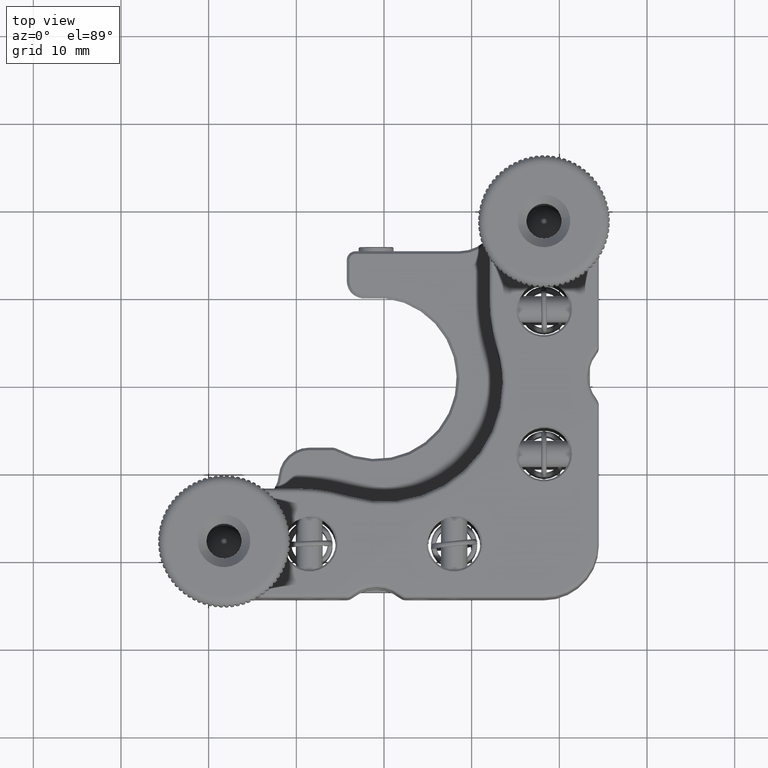
[diagram: clean part render]
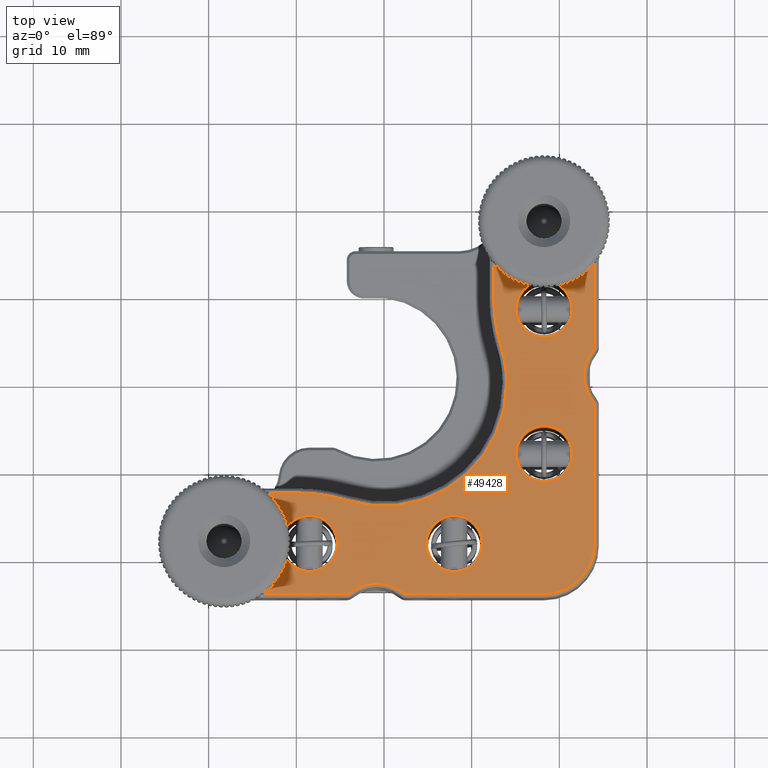
[diagram: same view with one face highlighted and labeled with its STEP entity id]
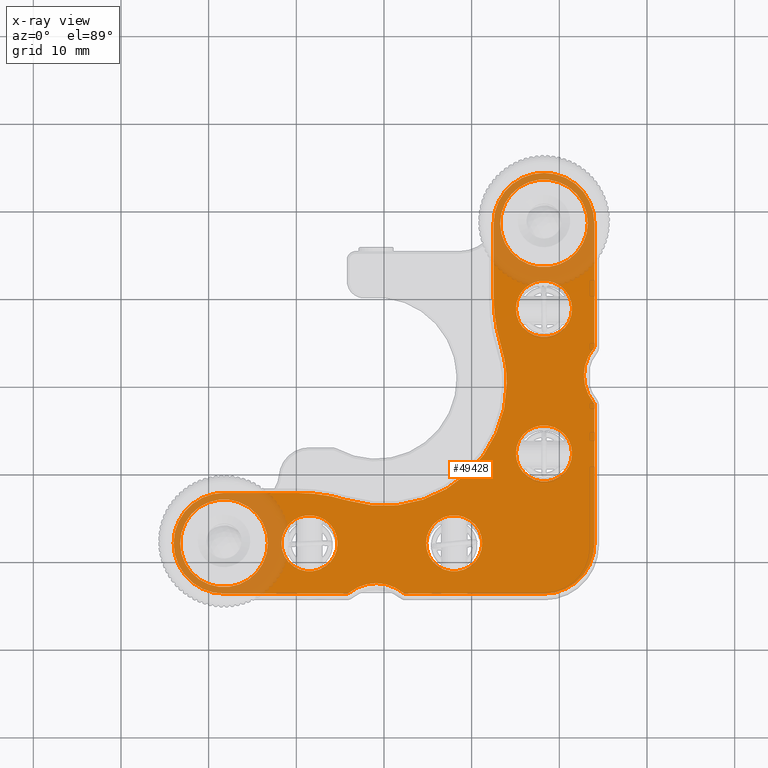
[diagram: x-ray of the same camera — body ghosted, the highlighted face saturated]
A machine part, top view. The second image highlights one B-rep face of the part: STEP entity #49428.
The next image is the same camera in x-ray: the body ghosted, the highlighted face saturated — about 15% of this face is hidden behind the body in this view.
In plain terms, the highlighted planar face has unit normal (-0, 0, 1).
Its self-contained STEP definition (entity closure, byte-faithful):
#198 = EDGE_CURVE ( 'NONE', #52877, #49282, #49511, .T. ) ;
#214 = EDGE_CURVE ( 'NONE', #3505, #34670, #11212, .T. ) ;
#220 = CIRCLE ( 'NONE', #31741, 14.00000000000000000 ) ;
#386 = DIRECTION ( 'NONE',  ( -0.000000000000000000, 0.000000000000000000, 1.000000000000000000 ) ) ;
#769 = DIRECTION ( 'NONE',  ( 1.000000000000000000, 0.000000000000000000, 0.000000000000000000 ) ) ;
#1269 = AXIS2_PLACEMENT_3D ( 'NONE', #2354, #6837, #51552 ) ;
#1720 = CARTESIAN_POINT ( 'NONE',  ( -0.8999999999999939160, -27.65000000000000213, 7.500000000000000000 ) ) ;
#1869 = ORIENTED_EDGE ( 'NONE', *, *, #22063, .T. ) ;
#2047 = CARTESIAN_POINT ( 'NONE',  ( -18.24999999999999645, -18.24999999999999645, 7.500000000000000000 ) ) ;
#2306 = EDGE_LOOP ( 'NONE', ( #25286, #57844 ) ) ;
#2354 = CARTESIAN_POINT ( 'NONE',  ( -4.276388603226821239, -23.49999999999999645, 7.500000000000000000 ) ) ;
#2527 = EDGE_CURVE ( 'NONE', #18550, #16375, #220, .T. ) ;
#3274 = VERTEX_POINT ( 'NONE', #17874 ) ;
#3361 = CARTESIAN_POINT ( 'NONE',  ( -18.24999999999999645, -18.24999999999999645, 7.500000000000000000 ) ) ;
#3505 = VERTEX_POINT ( 'NONE', #4822 ) ;
#3631 = DIRECTION ( 'NONE',  ( 0.000000000000000000, -0.000000000000000000, -1.000000000000000000 ) ) ;
#3664 = DIRECTION ( 'NONE',  ( 0.000000000000000000, -0.000000000000000000, -1.000000000000000000 ) ) ;
#3686 = ORIENTED_EDGE ( 'NONE', *, *, #2527, .T. ) ;
#3861 = CARTESIAN_POINT ( 'NONE',  ( -8.499999999999992895, -18.25000000000001776, 7.500000000000000000 ) ) ;
#3927 = AXIS2_PLACEMENT_3D ( 'NONE', #31081, #22382, #4483 ) ;
#4483 = DIRECTION ( 'NONE',  ( 1.000000000000000000, 0.000000000000000000, 0.000000000000000000 ) ) ;
#4543 = VERTEX_POINT ( 'NONE', #8823 ) ;
#4618 = AXIS2_PLACEMENT_3D ( 'NONE', #18024, #26094, #36259 ) ;
#4648 = EDGE_CURVE ( 'NONE', #43157, #18753, #40830, .T. ) ;
#4652 = EDGE_CURVE ( 'NONE', #43255, #12677, #54212, .T. ) ;
#4675 = EDGE_CURVE ( 'NONE', #30658, #3274, #43745, .T. ) ;
#4676 = CARTESIAN_POINT ( 'NONE',  ( 18.25000000000001066, 8.500000000000000000, 7.500000000000000000 ) ) ;
#4822 = CARTESIAN_POINT ( 'NONE',  ( 15.05000000000000782, -8.000000000000000000, 7.500000000000000000 ) ) ;
#4872 = VERTEX_POINT ( 'NONE', #54084 ) ;
#5053 = CARTESIAN_POINT ( 'NONE',  ( 4.800000000000015810, -18.25000000000001066, 7.500000000000000000 ) ) ;
#6504 = DIRECTION ( 'NONE',  ( 1.000000000000000000, -1.430699774001489446E-15, 0.000000000000000000 ) ) ;
#6575 = EDGE_LOOP ( 'NONE', ( #10753, #53641 ) ) ;
#6837 = DIRECTION ( 'NONE',  ( -0.000000000000000000, 0.000000000000000000, 1.000000000000000000 ) ) ;
#6895 = EDGE_CURVE ( 'NONE', #29401, #38690, #27680, .T. ) ;
#6908 = AXIS2_PLACEMENT_3D ( 'NONE', #51005, #32313, #10170 ) ;
#7308 = CARTESIAN_POINT ( 'NONE',  ( 15.05000000000002203, 8.500000000000000000, 7.500000000000000000 ) ) ;
#7483 = CARTESIAN_POINT ( 'NONE',  ( 18.25000000000001066, -8.000000000000000000, 7.500000000000000000 ) ) ;
#7828 = EDGE_CURVE ( 'NONE', #42696, #29255, #32695, .T. ) ;
#7888 = DIRECTION ( 'NONE',  ( -0.000000000000000000, 0.000000000000000000, 1.000000000000000000 ) ) ;
#7899 = VERTEX_POINT ( 'NONE', #38500 ) ;
#7966 = ORIENTED_EDGE ( 'NONE', *, *, #25686, .T. ) ;
#8235 = VERTEX_POINT ( 'NONE', #24997 ) ;
#8258 = EDGE_CURVE ( 'NONE', #4872, #54550, #45082, .T. ) ;
#8823 = CARTESIAN_POINT ( 'NONE',  ( -3.960838266476649938, -23.88785046728971651, 7.500000000000000000 ) ) ;
#8832 = DIRECTION ( 'NONE',  ( 0.000000000000000000, -0.000000000000000000, -1.000000000000000000 ) ) ;
#8866 = AXIS2_PLACEMENT_3D ( 'NONE', #2047, #38469, #56621 ) ;
#9078 = DIRECTION ( 'NONE',  ( 0.000000000000000000, -0.000000000000000000, -1.000000000000000000 ) ) ;
#9160 = CIRCLE ( 'NONE', #18702, 0.5000000000000004441 ) ;
#9327 = EDGE_CURVE ( 'NONE', #8235, #4543, #14579, .T. ) ;
#9487 = DIRECTION ( 'NONE',  ( 0.000000000000000000, -0.000000000000000000, -1.000000000000000000 ) ) ;
#9763 = CARTESIAN_POINT ( 'NONE',  ( 23.88785046728972006, 3.960838266476649494, 7.500000000000000000 ) ) ;
#10010 = CARTESIAN_POINT ( 'NONE',  ( -8.499999999999992895, -18.25000000000001776, 7.500000000000000000 ) ) ;
#10170 = DIRECTION ( 'NONE',  ( 1.000000000000000000, 0.000000000000000000, 0.000000000000000000 ) ) ;
#10262 = ORIENTED_EDGE ( 'NONE', *, *, #198, .T. ) ;
#10304 = DIRECTION ( 'NONE',  ( -0.000000000000000000, 0.000000000000000000, 1.000000000000000000 ) ) ;
#10614 = VECTOR ( 'NONE', #21391, 1000.000000000000000 ) ;
#10753 = ORIENTED_EDGE ( 'NONE', *, *, #52618, .T. ) ;
#10800 = VERTEX_POINT ( 'NONE', #42916 ) ;
#10890 = DIRECTION ( 'NONE',  ( 0.000000000000000000, -0.000000000000000000, -1.000000000000000000 ) ) ;
#10989 = CARTESIAN_POINT ( 'NONE',  ( -5.299999999999991829, -18.25000000000001776, 7.500000000000000000 ) ) ;
#11125 = AXIS2_PLACEMENT_3D ( 'NONE', #32394, #386, #54972 ) ;
#11212 = CIRCLE ( 'NONE', #42621, 3.200000000000001510 ) ;
#11360 = DIRECTION ( 'NONE',  ( -0.000000000000000000, 0.000000000000000000, 1.000000000000000000 ) ) ;
#11495 = DIRECTION ( 'NONE',  ( 1.000000000000000000, 0.000000000000000000, 0.000000000000000000 ) ) ;
#11561 = CARTESIAN_POINT ( 'NONE',  ( 12.50000000000000533, 9.912113800799499330, 7.500000000000000000 ) ) ;
#11699 = AXIS2_PLACEMENT_3D ( 'NONE', #36656, #9487, #35792 ) ;
#12082 = EDGE_CURVE ( 'NONE', #38690, #29401, #15790, .T. ) ;
#12226 = CIRCLE ( 'NONE', #4618, 4.999999999999997335 ) ;
#12677 = VERTEX_POINT ( 'NONE', #41664 ) ;
#12855 = FACE_BOUND ( 'NONE', #42000, .T. ) ;
#12903 = EDGE_CURVE ( 'NONE', #53871, #42795, #53967, .T. ) ;
#13037 = CIRCLE ( 'NONE', #14935, 3.200000000000001510 ) ;
#13604 = ORIENTED_EDGE ( 'NONE', *, *, #16591, .T. ) ;
#13867 = ORIENTED_EDGE ( 'NONE', *, *, #4648, .T. ) ;
#13950 = CIRCLE ( 'NONE', #11125, 19.50000000000000355 ) ;
#14155 = VERTEX_POINT ( 'NONE', #42251 ) ;
#14579 = CIRCLE ( 'NONE', #1269, 0.5000000000000000000 ) ;
#14864 = EDGE_CURVE ( 'NONE', #50418, #47643, #47553, .T. ) ;
#14935 = AXIS2_PLACEMENT_3D ( 'NONE', #3861, #21156, #22052 ) ;
#15019 = EDGE_CURVE ( 'NONE', #12677, #50114, #40512, .T. ) ;
#15349 = DIRECTION ( 'NONE',  ( 1.000000000000000000, 0.000000000000000000, 0.000000000000000000 ) ) ;
#15555 = AXIS2_PLACEMENT_3D ( 'NONE', #3361, #3664, #25725 ) ;
#15732 = VERTEX_POINT ( 'NONE', #41544 ) ;
#15790 = CIRCLE ( 'NONE', #28262, 3.199999999999987743 ) ;
#15885 = EDGE_CURVE ( 'NONE', #49282, #20891, #9160, .T. ) ;
#16375 = VERTEX_POINT ( 'NONE', #26919 ) ;
#16591 = EDGE_CURVE ( 'NONE', #18753, #43157, #13037, .T. ) ;
#16972 = EDGE_CURVE ( 'NONE', #42795, #53871, #25460, .T. ) ;
#17040 = DIRECTION ( 'NONE',  ( 1.000000000000000000, 0.000000000000000000, 0.000000000000000000 ) ) ;
#17289 = DIRECTION ( 'NONE',  ( 1.000000000000000000, 0.000000000000000000, 0.000000000000000000 ) ) ;
#17669 = CARTESIAN_POINT ( 'NONE',  ( 14.00000000000000000, 0.000000000000000000, 7.500000000000000000 ) ) ;
#17874 = CARTESIAN_POINT ( 'NONE',  ( -18.24999999999999645, -23.99999999999999645, 7.500000000000000000 ) ) ;
#18024 = CARTESIAN_POINT ( 'NONE',  ( 18.25000000000000711, 18.25000000000000355, 7.500000000000000000 ) ) ;
#18550 = VERTEX_POINT ( 'NONE', #17669 ) ;
#18702 = AXIS2_PLACEMENT_3D ( 'NONE', #48729, #58554, #26688 ) ;
#18753 = VERTEX_POINT ( 'NONE', #10989 ) ;
#18910 = AXIS2_PLACEMENT_3D ( 'NONE', #44750, #48608, #49196 ) ;
#19825 = AXIS2_PLACEMENT_3D ( 'NONE', #58476, #22994, #41194 ) ;
#19906 = DIRECTION ( 'NONE',  ( 0.000000000000000000, -0.000000000000000000, -1.000000000000000000 ) ) ;
#19966 = ORIENTED_EDGE ( 'NONE', *, *, #15019, .T. ) ;
#20019 = VECTOR ( 'NONE', #45326, 1000.000000000000000 ) ;
#20253 = VERTEX_POINT ( 'NONE', #30433 ) ;
#20262 = CARTESIAN_POINT ( 'NONE',  ( 18.25000000000000355, -18.24999999999999289, 7.500000000000000000 ) ) ;
#20424 = CARTESIAN_POINT ( 'NONE',  ( -18.24999999999999645, -18.25000000000000355, 7.500000000000000000 ) ) ;
#20891 = VERTEX_POINT ( 'NONE', #30859 ) ;
#21110 = CARTESIAN_POINT ( 'NONE',  ( -23.24999999999999289, -18.24999999999999645, 7.500000000000000000 ) ) ;
#21156 = DIRECTION ( 'NONE',  ( 0.000000000000000000, -0.000000000000000000, -1.000000000000000000 ) ) ;
#21391 = DIRECTION ( 'NONE',  ( 3.788569206083147235E-16, -1.000000000000000000, 0.000000000000000000 ) ) ;
#21632 = ORIENTED_EDGE ( 'NONE', *, *, #12082, .T. ) ;
#22052 = DIRECTION ( 'NONE',  ( 1.000000000000000000, 0.000000000000000000, 0.000000000000000000 ) ) ;
#22063 = EDGE_CURVE ( 'NONE', #20891, #43255, #50520, .T. ) ;
#22356 = EDGE_CURVE ( 'NONE', #50114, #7899, #43879, .T. ) ;
#22382 = DIRECTION ( 'NONE',  ( -0.000000000000000000, 0.000000000000000000, 1.000000000000000000 ) ) ;
#22871 = DIRECTION ( 'NONE',  ( 1.000000000000000000, 0.000000000000000000, 0.000000000000000000 ) ) ;
#22994 = DIRECTION ( 'NONE',  ( -0.000000000000000000, 0.000000000000000000, 1.000000000000000000 ) ) ;
#23028 = CARTESIAN_POINT ( 'NONE',  ( -23.99999999999999645, -18.24999999999999289, 7.500000000000000000 ) ) ;
#23300 = ORIENTED_EDGE ( 'NONE', *, *, #22356, .T. ) ;
#23657 = VECTOR ( 'NONE', #47048, 1000.000000000000000 ) ;
#23795 = CARTESIAN_POINT ( 'NONE',  ( 13.37313432835820848, 4.142375916752031983, 7.500000000000000000 ) ) ;
#24157 = CIRCLE ( 'NONE', #15555, 4.999999999999997335 ) ;
#24235 = CARTESIAN_POINT ( 'NONE',  ( 23.25000000000000355, 18.25000000000000355, 7.500000000000000000 ) ) ;
#24393 = LINE ( 'NONE', #33405, #23657 ) ;
#24997 = CARTESIAN_POINT ( 'NONE',  ( -4.276388603226822127, -23.99999999999999645, 7.500000000000000000 ) ) ;
#25269 = ORIENTED_EDGE ( 'NONE', *, *, #46513, .T. ) ;
#25286 = ORIENTED_EDGE ( 'NONE', *, *, #14864, .T. ) ;
#25436 = ORIENTED_EDGE ( 'NONE', *, *, #8258, .T. ) ;
#25447 = EDGE_CURVE ( 'NONE', #16375, #15732, #34893, .T. ) ;
#25460 = CIRCLE ( 'NONE', #37896, 3.199999999999987743 ) ;
#25686 = EDGE_CURVE ( 'NONE', #15732, #40845, #33857, .T. ) ;
#25725 = DIRECTION ( 'NONE',  ( 1.000000000000000000, 0.000000000000000000, 0.000000000000000000 ) ) ;
#25975 = CARTESIAN_POINT ( 'NONE',  ( 8.000000000000003553, -18.25000000000001066, 7.500000000000000000 ) ) ;
#26044 = ORIENTED_EDGE ( 'NONE', *, *, #39805, .T. ) ;
#26083 = EDGE_CURVE ( 'NONE', #14155, #48669, #13950, .T. ) ;
#26094 = DIRECTION ( 'NONE',  ( 0.000000000000000000, -0.000000000000000000, -1.000000000000000000 ) ) ;
#26305 = FACE_BOUND ( 'NONE', #2306, .T. ) ;
#26616 = FACE_BOUND ( 'NONE', #27082, .T. ) ;
#26688 = DIRECTION ( 'NONE',  ( 1.000000000000000000, 0.000000000000000000, 0.000000000000000000 ) ) ;
#26805 = DIRECTION ( 'NONE',  ( -1.416100796715761110E-16, 1.000000000000000000, -0.000000000000000000 ) ) ;
#26919 = CARTESIAN_POINT ( 'NONE',  ( -4.142375916752035536, -13.37313432835820848, 7.500000000000000000 ) ) ;
#27082 = EDGE_LOOP ( 'NONE', ( #25436, #38303 ) ) ;
#27680 = CIRCLE ( 'NONE', #58105, 3.199999999999987743 ) ;
#28219 = DIRECTION ( 'NONE',  ( 1.000000000000000000, 0.000000000000000000, 0.000000000000000000 ) ) ;
#28262 = AXIS2_PLACEMENT_3D ( 'NONE', #39106, #57253, #35247 ) ;
#28456 = AXIS2_PLACEMENT_3D ( 'NONE', #10010, #10890, #15349 ) ;
#28566 = DIRECTION ( 'NONE',  ( 1.000000000000000000, 0.000000000000000000, 0.000000000000000000 ) ) ;
#29156 = DIRECTION ( 'NONE',  ( -0.000000000000000000, 0.000000000000000000, 1.000000000000000000 ) ) ;
#29255 = VERTEX_POINT ( 'NONE', #54530 ) ;
#29401 = VERTEX_POINT ( 'NONE', #5053 ) ;
#29405 = CARTESIAN_POINT ( 'NONE',  ( -18.24999999999999645, -12.50000000000000000, 7.500000000000000000 ) ) ;
#29617 = DIRECTION ( 'NONE',  ( 1.000000000000000000, 0.000000000000000000, 0.000000000000000000 ) ) ;
#29875 = EDGE_CURVE ( 'NONE', #47643, #50418, #12226, .T. ) ;
#30001 = AXIS2_PLACEMENT_3D ( 'NONE', #20424, #34229, #11495 ) ;
#30103 = EDGE_CURVE ( 'NONE', #48669, #18550, #44648, .T. ) ;
#30433 = CARTESIAN_POINT ( 'NONE',  ( 12.50000000000000533, 18.25000000000000000, 7.500000000000000000 ) ) ;
#30508 = AXIS2_PLACEMENT_3D ( 'NONE', #32747, #29156, #769 ) ;
#30658 = VERTEX_POINT ( 'NONE', #23028 ) ;
#30859 = CARTESIAN_POINT ( 'NONE',  ( 23.88785046728972006, -2.160838266476666547, 7.500000000000000000 ) ) ;
#30950 = ORIENTED_EDGE ( 'NONE', *, *, #25447, .T. ) ;
#31081 = CARTESIAN_POINT ( 'NONE',  ( 18.24999999999999289, 18.25000000000000355, 7.500000000000000000 ) ) ;
#31120 = FACE_BOUND ( 'NONE', #42869, .T. ) ;
#31741 = AXIS2_PLACEMENT_3D ( 'NONE', #54393, #9078, #28219 ) ;
#32132 = AXIS2_PLACEMENT_3D ( 'NONE', #42817, #35961, #57710 ) ;
#32303 = CARTESIAN_POINT ( 'NONE',  ( 18.25000000000000711, 18.25000000000000355, 7.500000000000000000 ) ) ;
#32313 = DIRECTION ( 'NONE',  ( -0.000000000000000000, 0.000000000000000000, 1.000000000000000000 ) ) ;
#32394 = CARTESIAN_POINT ( 'NONE',  ( 32.00000000000000000, 9.912113800799506436, 7.500000000000000000 ) ) ;
#32695 = CIRCLE ( 'NONE', #6908, 0.5000000000000000000 ) ;
#32747 = CARTESIAN_POINT ( 'NONE',  ( -18.24999999999999645, -18.24999999999999645, 7.500000000000000000 ) ) ;
#33168 = CARTESIAN_POINT ( 'NONE',  ( -11.69999999999999574, -18.25000000000001776, 7.500000000000000000 ) ) ;
#33249 = ORIENTED_EDGE ( 'NONE', *, *, #52765, .T. ) ;
#33405 = CARTESIAN_POINT ( 'NONE',  ( -4.276388603226822127, -23.99999999999999645, 7.500000000000000000 ) ) ;
#33694 = CIRCLE ( 'NONE', #11699, 3.200000000000001510 ) ;
#33857 = LINE ( 'NONE', #29405, #39627 ) ;
#34085 = ORIENTED_EDGE ( 'NONE', *, *, #9327, .T. ) ;
#34229 = DIRECTION ( 'NONE',  ( -0.000000000000000000, 0.000000000000000000, 1.000000000000000000 ) ) ;
#34670 = VERTEX_POINT ( 'NONE', #42306 ) ;
#34893 = CIRCLE ( 'NONE', #53883, 19.50000000000000000 ) ;
#35169 = CARTESIAN_POINT ( 'NONE',  ( 24.00000000000000355, -18.24999999999999289, 7.500000000000000000 ) ) ;
#35247 = DIRECTION ( 'NONE',  ( 1.000000000000000000, 0.000000000000000000, 0.000000000000000000 ) ) ;
#35668 = DIRECTION ( 'NONE',  ( 1.000000000000000000, 0.000000000000000000, 0.000000000000000000 ) ) ;
#35738 = CARTESIAN_POINT ( 'NONE',  ( 2.160838266476662994, -23.88785046728971651, 7.500000000000000000 ) ) ;
#35792 = DIRECTION ( 'NONE',  ( 1.000000000000000000, 0.000000000000000000, 0.000000000000000000 ) ) ;
#35803 = LINE ( 'NONE', #36103, #20019 ) ;
#35831 = ORIENTED_EDGE ( 'NONE', *, *, #45623, .T. ) ;
#35961 = DIRECTION ( 'NONE',  ( 0.000000000000000000, -0.000000000000000000, -1.000000000000000000 ) ) ;
#36103 = CARTESIAN_POINT ( 'NONE',  ( 18.25000000000000000, -23.99999999999999645, 7.500000000000000000 ) ) ;
#36259 = DIRECTION ( 'NONE',  ( 1.000000000000000000, 0.000000000000000000, 0.000000000000000000 ) ) ;
#36656 = CARTESIAN_POINT ( 'NONE',  ( 18.25000000000001066, -8.000000000000000000, 7.500000000000000000 ) ) ;
#37046 = DIRECTION ( 'NONE',  ( -0.000000000000000000, 0.000000000000000000, 1.000000000000000000 ) ) ;
#37200 = CARTESIAN_POINT ( 'NONE',  ( -18.24999999999999645, -12.50000000000000178, 7.500000000000000000 ) ) ;
#37292 = CARTESIAN_POINT ( 'NONE',  ( 18.25000000000000711, 18.25000000000000355, 7.500000000000000000 ) ) ;
#37618 = EDGE_LOOP ( 'NONE', ( #30950, #7966, #26044, #54367, #37734, #34085, #33249, #52781, #35831, #37746, #10262, #46217, #1869, #54306, #19966, #23300, #46055, #25269, #48578, #57657, #3686 ) ) ;
#37734 = ORIENTED_EDGE ( 'NONE', *, *, #44383, .T. ) ;
#37746 = ORIENTED_EDGE ( 'NONE', *, *, #39107, .T. ) ;
#37832 = CARTESIAN_POINT ( 'NONE',  ( 13.25000000000000888, 18.25000000000000355, 7.500000000000000000 ) ) ;
#37896 = AXIS2_PLACEMENT_3D ( 'NONE', #4676, #8832, #22871 ) ;
#38192 = AXIS2_PLACEMENT_3D ( 'NONE', #43699, #48180, #44616 ) ;
#38303 = ORIENTED_EDGE ( 'NONE', *, *, #54202, .T. ) ;
#38469 = DIRECTION ( 'NONE',  ( 0.000000000000000000, -0.000000000000000000, -1.000000000000000000 ) ) ;
#38500 = CARTESIAN_POINT ( 'NONE',  ( 18.25000000000000711, 24.00000000000000355, 7.500000000000000000 ) ) ;
#38690 = VERTEX_POINT ( 'NONE', #48386 ) ;
#38958 = VECTOR ( 'NONE', #26805, 1000.000000000000000 ) ;
#39043 = AXIS2_PLACEMENT_3D ( 'NONE', #37292, #55434, #47396 ) ;
#39106 = CARTESIAN_POINT ( 'NONE',  ( 8.000000000000003553, -18.25000000000001066, 7.500000000000000000 ) ) ;
#39107 = EDGE_CURVE ( 'NONE', #10800, #52877, #52684, .T. ) ;
#39134 = DIRECTION ( 'NONE',  ( 0.000000000000000000, -0.000000000000000000, -1.000000000000000000 ) ) ;
#39156 = ORIENTED_EDGE ( 'NONE', *, *, #16972, .T. ) ;
#39627 = VECTOR ( 'NONE', #47517, 1000.000000000000000 ) ;
#39805 = EDGE_CURVE ( 'NONE', #40845, #30658, #55626, .T. ) ;
#40306 = PLANE ( 'NONE',  #19825 ) ;
#40512 = LINE ( 'NONE', #58376, #38958 ) ;
#40634 = CARTESIAN_POINT ( 'NONE',  ( 23.99999999999999645, 18.25000000000000355, 7.500000000000000000 ) ) ;
#40830 = CIRCLE ( 'NONE', #28456, 3.200000000000001510 ) ;
#40845 = VERTEX_POINT ( 'NONE', #37200 ) ;
#41194 = DIRECTION ( 'NONE',  ( 1.000000000000000000, 0.000000000000000000, 0.000000000000000000 ) ) ;
#41544 = CARTESIAN_POINT ( 'NONE',  ( -9.912113800799515317, -12.50000000000000000, 7.500000000000000000 ) ) ;
#41664 = CARTESIAN_POINT ( 'NONE',  ( 24.00000000000000000, 4.276388603226818574, 7.500000000000000000 ) ) ;
#42000 = EDGE_LOOP ( 'NONE', ( #39156, #58798 ) ) ;
#42134 = CARTESIAN_POINT ( 'NONE',  ( 24.00000000000000000, -2.476388603226839180, 7.500000000000000000 ) ) ;
#42251 = CARTESIAN_POINT ( 'NONE',  ( 12.50000000000000533, 9.912113800799499330, 7.500000000000000000 ) ) ;
#42306 = CARTESIAN_POINT ( 'NONE',  ( 21.45000000000000995, -8.000000000000000000, 7.500000000000000000 ) ) ;
#42621 = AXIS2_PLACEMENT_3D ( 'NONE', #7483, #39134, #17289 ) ;
#42696 = VERTEX_POINT ( 'NONE', #35738 ) ;
#42795 = VERTEX_POINT ( 'NONE', #52333 ) ;
#42817 = CARTESIAN_POINT ( 'NONE',  ( 18.25000000000001066, 8.500000000000000000, 7.500000000000000000 ) ) ;
#42869 = EDGE_LOOP ( 'NONE', ( #13604, #13867 ) ) ;
#42916 = CARTESIAN_POINT ( 'NONE',  ( 18.25000000000000000, -23.99999999999999645, 7.500000000000000000 ) ) ;
#43157 = VERTEX_POINT ( 'NONE', #33168 ) ;
#43255 = VERTEX_POINT ( 'NONE', #9763 ) ;
#43699 = CARTESIAN_POINT ( 'NONE',  ( 27.65000000000000568, 0.8999999999999910294, 7.500000000000000000 ) ) ;
#43745 = CIRCLE ( 'NONE', #30508, 5.750000000000000000 ) ;
#43879 = CIRCLE ( 'NONE', #3927, 5.750000000000001776 ) ;
#44076 = AXIS2_PLACEMENT_3D ( 'NONE', #1720, #19906, #6504 ) ;
#44282 = CARTESIAN_POINT ( 'NONE',  ( -9.912113800799513541, -32.00000000000000000, 7.500000000000000000 ) ) ;
#44383 = EDGE_CURVE ( 'NONE', #3274, #8235, #24393, .T. ) ;
#44616 = DIRECTION ( 'NONE',  ( 1.000000000000000000, 0.000000000000000000, 0.000000000000000000 ) ) ;
#44648 = CIRCLE ( 'NONE', #18910, 14.00000000000000000 ) ;
#44750 = CARTESIAN_POINT ( 'NONE',  ( 0.000000000000000000, 0.000000000000000000, 7.500000000000000000 ) ) ;
#44793 = FACE_BOUND ( 'NONE', #47877, .T. ) ;
#45082 = CIRCLE ( 'NONE', #8866, 4.999999999999997335 ) ;
#45326 = DIRECTION ( 'NONE',  ( 1.000000000000000000, -0.000000000000000000, 0.000000000000000000 ) ) ;
#45492 = VECTOR ( 'NONE', #48910, 1000.000000000000000 ) ;
#45623 = EDGE_CURVE ( 'NONE', #29255, #10800, #35803, .T. ) ;
#46055 = ORIENTED_EDGE ( 'NONE', *, *, #52326, .T. ) ;
#46217 = ORIENTED_EDGE ( 'NONE', *, *, #15885, .T. ) ;
#46513 = EDGE_CURVE ( 'NONE', #20253, #14155, #52690, .T. ) ;
#47048 = DIRECTION ( 'NONE',  ( 1.000000000000000000, -0.000000000000000000, 0.000000000000000000 ) ) ;
#47396 = DIRECTION ( 'NONE',  ( 1.000000000000000000, 0.000000000000000000, 0.000000000000000000 ) ) ;
#47517 = DIRECTION ( 'NONE',  ( -1.000000000000000000, -9.471423015207876716E-17, -0.000000000000000000 ) ) ;
#47553 = CIRCLE ( 'NONE', #39043, 4.999999999999997335 ) ;
#47643 = VERTEX_POINT ( 'NONE', #37832 ) ;
#47877 = EDGE_LOOP ( 'NONE', ( #21632, #56439 ) ) ;
#48180 = DIRECTION ( 'NONE',  ( 0.000000000000000000, -0.000000000000000000, -1.000000000000000000 ) ) ;
#48386 = CARTESIAN_POINT ( 'NONE',  ( 11.19999999999999041, -18.25000000000001066, 7.500000000000000000 ) ) ;
#48578 = ORIENTED_EDGE ( 'NONE', *, *, #26083, .T. ) ;
#48608 = DIRECTION ( 'NONE',  ( 0.000000000000000000, -0.000000000000000000, -1.000000000000000000 ) ) ;
#48669 = VERTEX_POINT ( 'NONE', #23795 ) ;
#48729 = CARTESIAN_POINT ( 'NONE',  ( 23.50000000000000000, -2.476388603226838292, 7.500000000000000000 ) ) ;
#48910 = DIRECTION ( 'NONE',  ( -1.416100796715761110E-16, 1.000000000000000000, -0.000000000000000000 ) ) ;
#49196 = DIRECTION ( 'NONE',  ( 1.000000000000000000, 6.217248937900876626E-15, 0.000000000000000000 ) ) ;
#49282 = VERTEX_POINT ( 'NONE', #42134 ) ;
#49428 = ADVANCED_FACE ( 'NONE', ( #26616, #31120, #44793, #53707, #12855, #26305, #49802 ), #40306, .T. ) ;
#49511 = LINE ( 'NONE', #52807, #45492 ) ;
#49802 = FACE_OUTER_BOUND ( 'NONE', #37618, .T. ) ;
#50114 = VERTEX_POINT ( 'NONE', #40634 ) ;
#50418 = VERTEX_POINT ( 'NONE', #24235 ) ;
#50520 = CIRCLE ( 'NONE', #38192, 4.850000000000003197 ) ;
#51005 = CARTESIAN_POINT ( 'NONE',  ( 2.476388603226833407, -23.49999999999999645, 7.500000000000000000 ) ) ;
#51552 = DIRECTION ( 'NONE',  ( 1.000000000000000000, 0.000000000000000000, 0.000000000000000000 ) ) ;
#51690 = CIRCLE ( 'NONE', #44076, 4.850000000000003197 ) ;
#52326 = EDGE_CURVE ( 'NONE', #7899, #20253, #55352, .T. ) ;
#52333 = CARTESIAN_POINT ( 'NONE',  ( 21.44999999999999574, 8.500000000000000000, 7.500000000000000000 ) ) ;
#52618 = EDGE_CURVE ( 'NONE', #34670, #3505, #33694, .T. ) ;
#52684 = CIRCLE ( 'NONE', #57464, 5.749999999999998224 ) ;
#52690 = LINE ( 'NONE', #11561, #10614 ) ;
#52765 = EDGE_CURVE ( 'NONE', #4543, #42696, #51690, .T. ) ;
#52781 = ORIENTED_EDGE ( 'NONE', *, *, #7828, .T. ) ;
#52807 = CARTESIAN_POINT ( 'NONE',  ( 24.00000000000000000, -2.476388603226839624, 7.500000000000000000 ) ) ;
#52877 = VERTEX_POINT ( 'NONE', #35169 ) ;
#53641 = ORIENTED_EDGE ( 'NONE', *, *, #214, .T. ) ;
#53707 = FACE_BOUND ( 'NONE', #6575, .T. ) ;
#53871 = VERTEX_POINT ( 'NONE', #7308 ) ;
#53883 = AXIS2_PLACEMENT_3D ( 'NONE', #44282, #7888, #35668 ) ;
#53967 = CIRCLE ( 'NONE', #32132, 3.199999999999987743 ) ;
#54084 = CARTESIAN_POINT ( 'NONE',  ( -13.24999999999999822, -18.24999999999999645, 7.500000000000000000 ) ) ;
#54202 = EDGE_CURVE ( 'NONE', #54550, #4872, #24157, .T. ) ;
#54212 = CIRCLE ( 'NONE', #56147, 0.5000000000000004441 ) ;
#54306 = ORIENTED_EDGE ( 'NONE', *, *, #4652, .T. ) ;
#54367 = ORIENTED_EDGE ( 'NONE', *, *, #4675, .T. ) ;
#54380 = AXIS2_PLACEMENT_3D ( 'NONE', #32303, #37046, #55175 ) ;
#54393 = CARTESIAN_POINT ( 'NONE',  ( 0.000000000000000000, 0.000000000000000000, 7.500000000000000000 ) ) ;
#54530 = CARTESIAN_POINT ( 'NONE',  ( 2.476388603226832519, -23.99999999999999645, 7.500000000000000000 ) ) ;
#54550 = VERTEX_POINT ( 'NONE', #21110 ) ;
#54972 = DIRECTION ( 'NONE',  ( 1.000000000000000000, 0.000000000000000000, 0.000000000000000000 ) ) ;
#55175 = DIRECTION ( 'NONE',  ( 1.000000000000000000, 0.000000000000000000, 0.000000000000000000 ) ) ;
#55352 = CIRCLE ( 'NONE', #54380, 5.750000000000001776 ) ;
#55434 = DIRECTION ( 'NONE',  ( 0.000000000000000000, -0.000000000000000000, -1.000000000000000000 ) ) ;
#55626 = CIRCLE ( 'NONE', #30001, 5.750000000000000000 ) ;
#55937 = CARTESIAN_POINT ( 'NONE',  ( 23.50000000000000000, 4.276388603226819463, 7.500000000000000000 ) ) ;
#56147 = AXIS2_PLACEMENT_3D ( 'NONE', #55937, #10304, #28566 ) ;
#56439 = ORIENTED_EDGE ( 'NONE', *, *, #6895, .T. ) ;
#56621 = DIRECTION ( 'NONE',  ( 1.000000000000000000, 0.000000000000000000, 0.000000000000000000 ) ) ;
#57253 = DIRECTION ( 'NONE',  ( 0.000000000000000000, -0.000000000000000000, -1.000000000000000000 ) ) ;
#57464 = AXIS2_PLACEMENT_3D ( 'NONE', #20262, #11360, #29617 ) ;
#57657 = ORIENTED_EDGE ( 'NONE', *, *, #30103, .T. ) ;
#57710 = DIRECTION ( 'NONE',  ( 1.000000000000000000, 0.000000000000000000, 0.000000000000000000 ) ) ;
#57844 = ORIENTED_EDGE ( 'NONE', *, *, #29875, .T. ) ;
#58105 = AXIS2_PLACEMENT_3D ( 'NONE', #25975, #3631, #17040 ) ;
#58376 = CARTESIAN_POINT ( 'NONE',  ( 23.99999999999999645, 18.25000000000000355, 7.500000000000000000 ) ) ;
#58476 = CARTESIAN_POINT ( 'NONE',  ( 0.000000000000000000, 0.000000000000000000, 7.500000000000000000 ) ) ;
#58554 = DIRECTION ( 'NONE',  ( -0.000000000000000000, 0.000000000000000000, 1.000000000000000000 ) ) ;
#58798 = ORIENTED_EDGE ( 'NONE', *, *, #12903, .T. ) ;